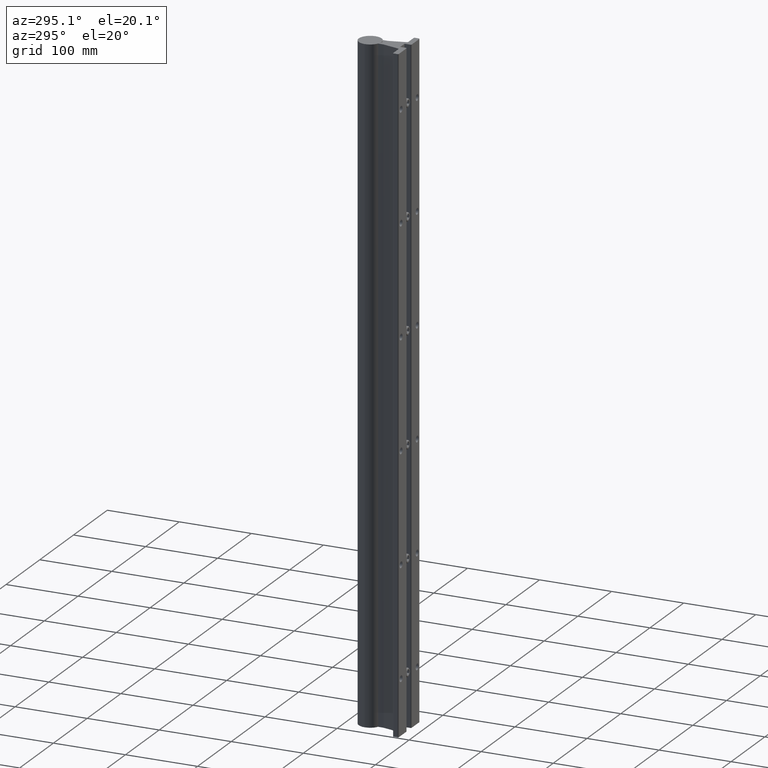
[diagram: clean part render]
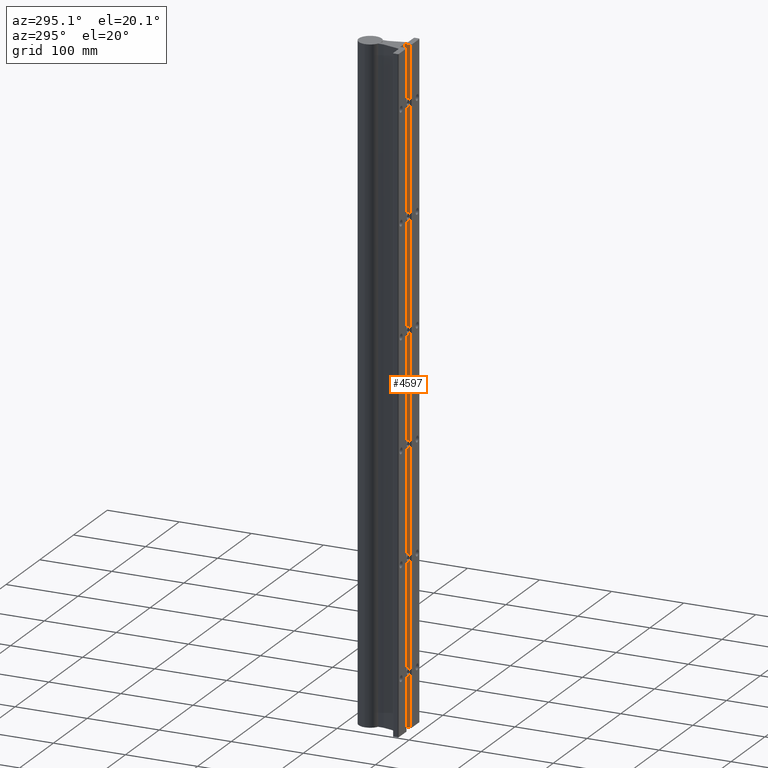
[diagram: same view with one face highlighted and labeled with its STEP entity id]
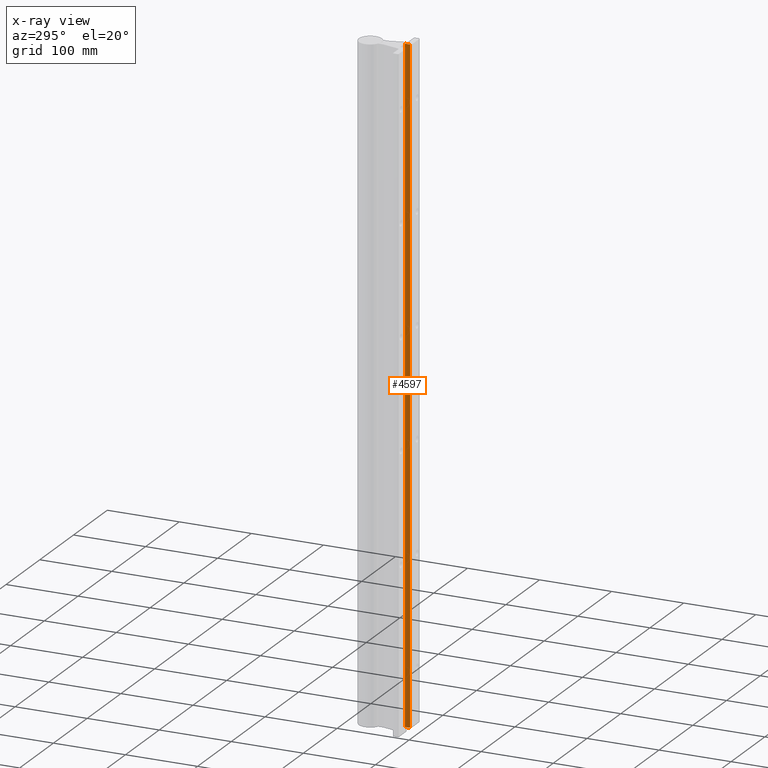
[diagram: x-ray of the same camera — body ghosted, the highlighted face saturated]
A machine part, auxiliary view. The second image highlights one B-rep face of the part: STEP entity #4597.
The next image is the same camera in x-ray: the body ghosted, the highlighted face saturated — about 0% of this face is hidden behind the body in this view.
In plain terms, the highlighted planar face has unit normal (-1, -0, 0).
Its self-contained STEP definition (entity closure, byte-faithful):
#1265 = LINE ( 'NONE', #13766, #11844 ) ;
#1721 = ORIENTED_EDGE ( 'NONE', *, *, #13683, .F. ) ;
#1870 = DIRECTION ( 'NONE',  ( 0.000000000000000000, 0.000000000000000000, 1.000000000000000000 ) ) ;
#2811 = CARTESIAN_POINT ( 'NONE',  ( 0.2500000000000002776, 0.3524999999999998690, 0.000000000000000000 ) ) ;
#3435 = EDGE_CURVE ( 'NONE', #12358, #13484, #7967, .T. ) ;
#3941 = EDGE_CURVE ( 'NONE', #10566, #5325, #1265, .T. ) ;
#4088 = ORIENTED_EDGE ( 'NONE', *, *, #3941, .T. ) ;
#4319 = DIRECTION ( 'NONE',  ( 1.887287042255106106E-15, -1.000000000000000000, 0.000000000000000000 ) ) ;
#4597 = ADVANCED_FACE ( 'NONE', ( #12882 ), #9762, .T. ) ;
#4726 = ORIENTED_EDGE ( 'NONE', *, *, #9549, .F. ) ;
#5219 = DIRECTION ( 'NONE',  ( 0.000000000000000000, 0.000000000000000000, 1.000000000000000000 ) ) ;
#5325 = VERTEX_POINT ( 'NONE', #12755 ) ;
#5797 = CARTESIAN_POINT ( 'NONE',  ( 0.2500000000000002776, 0.3524999999999998690, -38.94793013549425353 ) ) ;
#5961 = CARTESIAN_POINT ( 'NONE',  ( 0.2500000000000000000, 0.3524999999999998690, -36.00000000000000000 ) ) ;
#6246 = VECTOR ( 'NONE', #12728, 39.37007874015748143 ) ;
#6467 = CARTESIAN_POINT ( 'NONE',  ( 0.2500000000000002776, 0.3524999999999998690, -38.94793013549425353 ) ) ;
#7671 = EDGE_LOOP ( 'NONE', ( #1721, #4088, #4726, #9998 ) ) ;
#7967 = LINE ( 'NONE', #5797, #13648 ) ;
#8094 = LINE ( 'NONE', #2811, #11546 ) ;
#8159 = DIRECTION ( 'NONE',  ( 1.887287042255106106E-15, -1.000000000000000000, 0.000000000000000000 ) ) ;
#8463 = CARTESIAN_POINT ( 'NONE',  ( 0.2500000000000002776, 0.3524999999999998690, -36.00000000000000000 ) ) ;
#9175 = CARTESIAN_POINT ( 'NONE',  ( 0.2500000000000000000, 0.3524999999999998690, 0.000000000000000000 ) ) ;
#9549 = EDGE_CURVE ( 'NONE', #13484, #5325, #8094, .T. ) ;
#9590 = AXIS2_PLACEMENT_3D ( 'NONE', #6467, #10755, #4319 ) ;
#9762 = PLANE ( 'NONE',  #9590 ) ;
#9998 = ORIENTED_EDGE ( 'NONE', *, *, #3435, .F. ) ;
#10468 = LINE ( 'NONE', #8463, #6246 ) ;
#10566 = VERTEX_POINT ( 'NONE', #10590 ) ;
#10590 = CARTESIAN_POINT ( 'NONE',  ( 0.2500000000000008327, 0.06300000000000012534, -36.00000000000000000 ) ) ;
#10755 = DIRECTION ( 'NONE',  ( -1.000000000000000000, -1.887287042255106106E-15, 0.000000000000000000 ) ) ;
#11546 = VECTOR ( 'NONE', #8159, 39.37007874015748143 ) ;
#11844 = VECTOR ( 'NONE', #5219, 39.37007874015748143 ) ;
#12358 = VERTEX_POINT ( 'NONE', #5961 ) ;
#12728 = DIRECTION ( 'NONE',  ( -1.887287042255106106E-15, 1.000000000000000000, 0.000000000000000000 ) ) ;
#12755 = CARTESIAN_POINT ( 'NONE',  ( 0.2500000000000008327, 0.06300000000000012534, 0.000000000000000000 ) ) ;
#12882 = FACE_OUTER_BOUND ( 'NONE', #7671, .T. ) ;
#13484 = VERTEX_POINT ( 'NONE', #9175 ) ;
#13648 = VECTOR ( 'NONE', #1870, 39.37007874015748143 ) ;
#13683 = EDGE_CURVE ( 'NONE', #10566, #12358, #10468, .T. ) ;
#13766 = CARTESIAN_POINT ( 'NONE',  ( 0.2500000000000008327, 0.06300000000000012534, -38.94793013549425353 ) ) ;